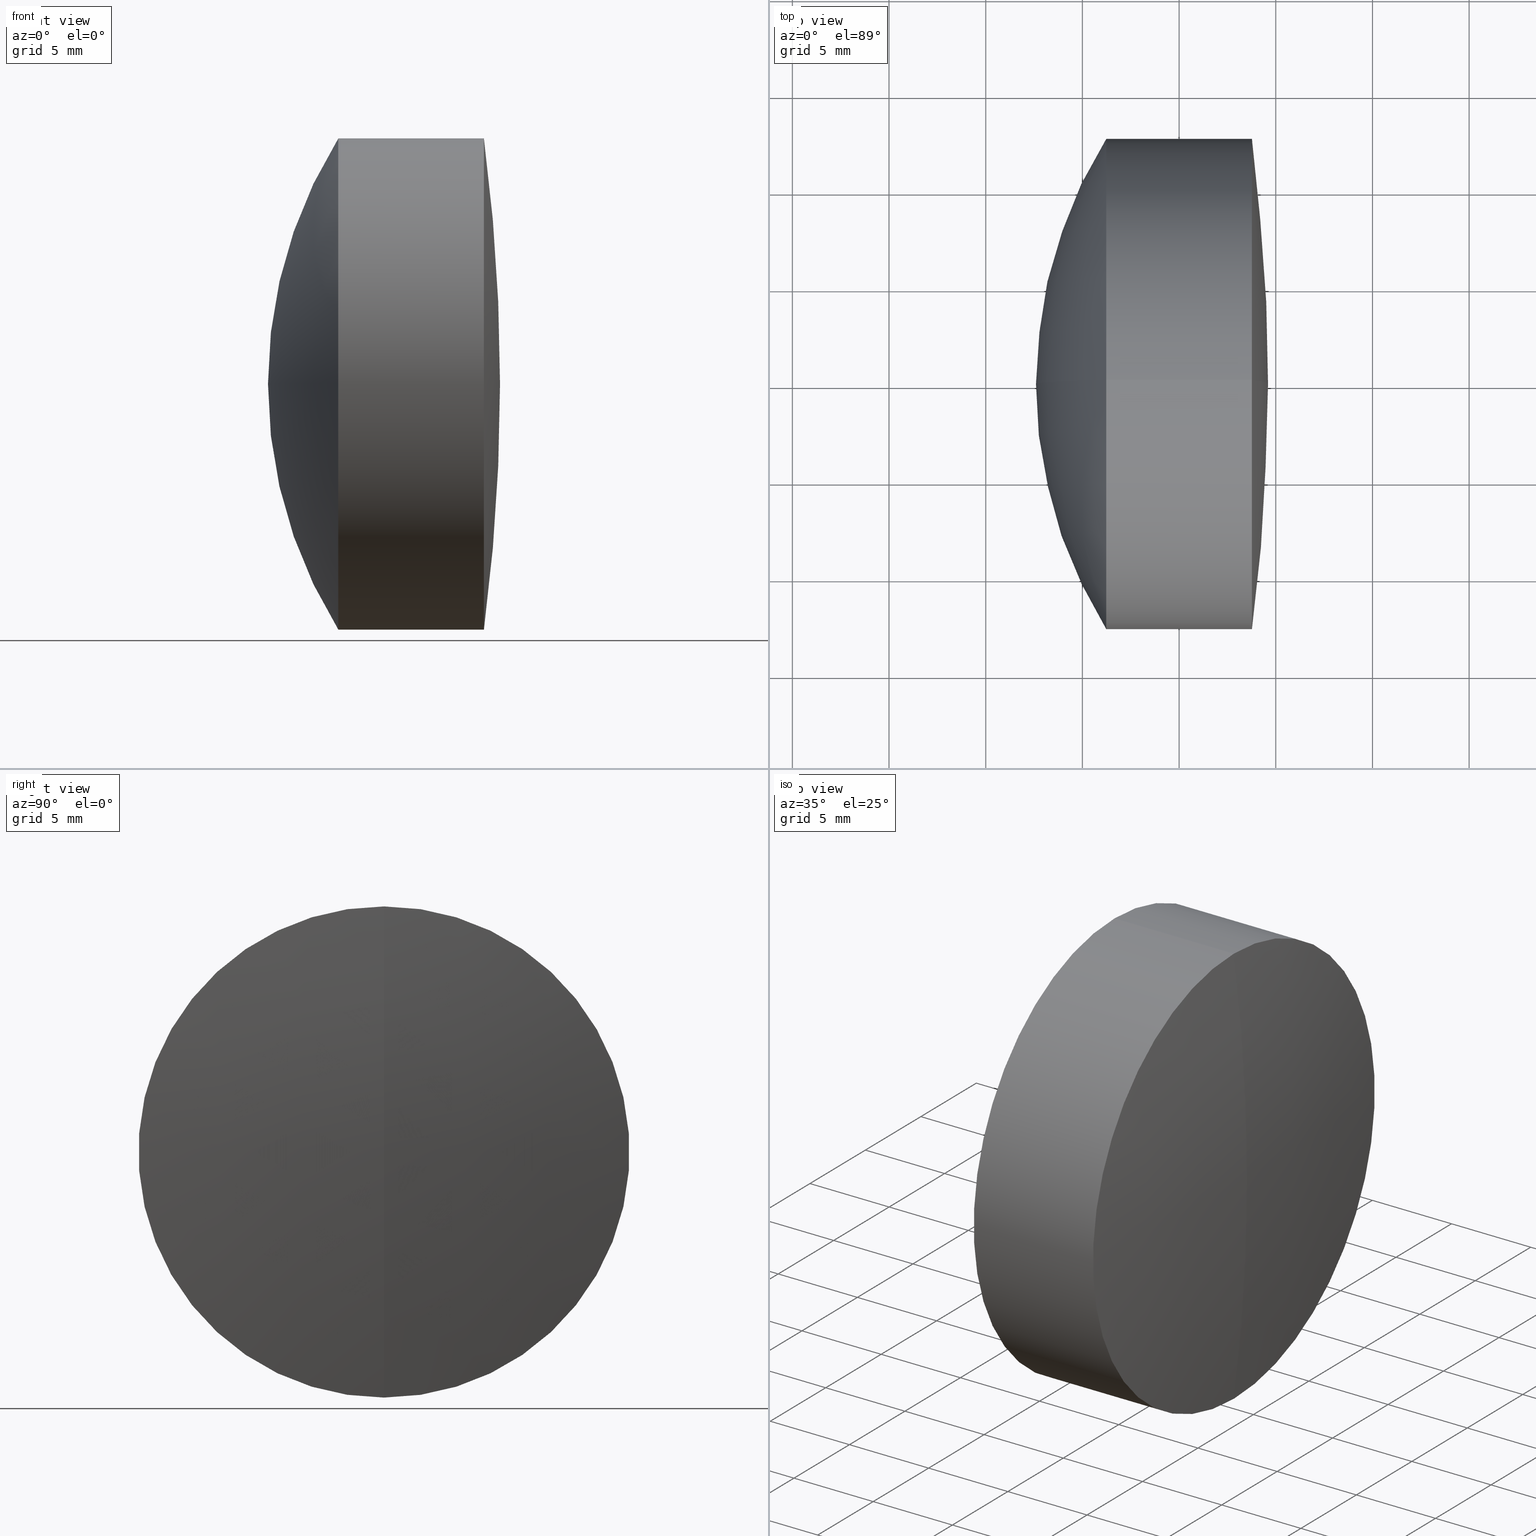
[diagram: canonical four-view strip — front | top / right | iso, engineering-drawing reading convention]
A machine part, canonical four-view strip (front | top / right | iso — engineering-drawing reading convention). The complete STEP part file that produces these views, byte-faithful:
ISO-10303-21;
HEADER;
FILE_DESCRIPTION (( 'STEP AP214' ),
    '1' );
FILE_NAME ('145115.STEP',
    '2019-05-31T02:16:12',
    ( 'user' ),
    ( '΢���й�' ),
    'SwSTEP 2.0',
    'SolidWorks 2016',
    '' );
FILE_SCHEMA (( 'AUTOMOTIVE_DESIGN' ));
ENDSEC;

DATA;
#1 = ADVANCED_FACE ( 'NONE', ( #68 ), #262, .T. ) ;
#2 = DIRECTION ( 'NONE',  ( 0.0000000000000000000, 1.000000000000000000, 0.0000000000000000000 ) ) ;
#3 = EDGE_CURVE ( 'NONE', #190, #42, #59, .T. ) ;
#4 =( LENGTH_UNIT ( ) NAMED_UNIT ( * ) SI_UNIT ( .MILLI., .METRE. ) );
#5 = AXIS2_PLACEMENT_3D ( 'NONE', #60, #261, #259 ) ;
#6 = COLOUR_RGB ( '',1.000000000000000000, 1.000000000000000000, 1.000000000000000000 ) ;
#7 = EDGE_CURVE ( 'NONE', #61, #256, #276, .T. ) ;
#8 =( LENGTH_UNIT ( ) NAMED_UNIT ( * ) SI_UNIT ( .MILLI., .METRE. ) );
#9 = CARTESIAN_POINT ( 'NONE',  ( 278.0956821889693100, 0.0000000000000000000, 12.69999999999997800 ) ) ;
#10 = LINE ( 'NONE', #207, #269 ) ;
#11 = AXIS2_PLACEMENT_3D ( 'NONE', #48, #94, #182 ) ;
#12 = ORIENTED_EDGE ( 'NONE', *, *, #69, .F. ) ;
#13 = DIRECTION ( 'NONE',  ( 0.0000000000000000000, 1.000000000000000000, 0.0000000000000000000 ) ) ;
#14 = DIRECTION ( 'NONE',  ( -1.000000000000000000, -0.0000000000000000000, -0.0000000000000000000 ) ) ;
#15 = SURFACE_SIDE_STYLE ('',( #297 ) ) ;
#16 = FACE_OUTER_BOUND ( 'NONE', #338, .T. ) ;
#17 = DIRECTION ( 'NONE',  ( 0.0000000000000000000, 0.0000000000000000000, -1.000000000000000000 ) ) ;
#18 = DIRECTION ( 'NONE',  ( -1.000000000000000000, -0.0000000000000000000, -0.0000000000000000000 ) ) ;
#19 = ORIENTED_EDGE ( 'NONE', *, *, #178, .F. ) ;
#20 = ORIENTED_EDGE ( 'NONE', *, *, #45, .F. ) ;
#21 = SURFACE_STYLE_USAGE ( .BOTH. , #15 ) ;
#22 = CARTESIAN_POINT ( 'NONE',  ( 272.5989865545651600, 0.0000000000000000000, 5.503456575654534800E-015 ) ) ;
#23 = ORIENTED_EDGE ( 'NONE', *, *, #39, .F. ) ;
#24 = DIRECTION ( 'NONE',  ( -1.000000000000000000, -0.0000000000000000000, -0.0000000000000000000 ) ) ;
#25 = AXIS2_PLACEMENT_3D ( 'NONE', #315, #132, #236 ) ;
#26 = DIRECTION ( 'NONE',  ( 0.0000000000000000000, 1.000000000000000000, 0.0000000000000000000 ) ) ;
#27 = ORIENTED_EDGE ( 'NONE', *, *, #150, .F. ) ;
#28 = SHAPE_DEFINITION_REPRESENTATION ( #53, #133 ) ;
#29 = ADVANCED_FACE ( 'NONE', ( #346 ), #252, .T. ) ;
#30 = DIRECTION ( 'NONE',  ( -0.0000000000000000000, 1.000000000000000000, 1.224646799147353200E-016 ) ) ;
#31 = ORIENTED_EDGE ( 'NONE', *, *, #229, .T. ) ;
#32 = DIRECTION ( 'NONE',  ( 0.0000000000000000000, -1.000000000000000000, 0.0000000000000000000 ) ) ;
#33 = VECTOR ( 'NONE', #181, 1000.000000000000000 ) ;
#34 = PRESENTATION_LAYER_ASSIGNMENT (  '', '', ( #284 ) ) ;
#35 = ORIENTED_EDGE ( 'NONE', *, *, #229, .F. ) ;
#36 =( NAMED_UNIT ( * ) SI_UNIT ( $, .STERADIAN. ) SOLID_ANGLE_UNIT ( ) );
#37 = MANIFOLD_SOLID_BREP ( '��ת3', #187 ) ;
#38 = EDGE_CURVE ( 'NONE', #256, #341, #107, .T. ) ;
#39 = EDGE_CURVE ( 'NONE', #341, #256, #250, .T. ) ;
#40 = DIRECTION ( 'NONE',  ( 0.0000000000000000000, 0.0000000000000000000, 1.000000000000000000 ) ) ;
#41 = LINE ( 'NONE', #91, #118 ) ;
#42 = VERTEX_POINT ( 'NONE', #95 ) ;
#43 = DIRECTION ( 'NONE',  ( -1.000000000000000000, -0.0000000000000000000, -0.0000000000000000000 ) ) ;
#44 = DIRECTION ( 'NONE',  ( 0.0000000000000000000, 0.0000000000000000000, 1.000000000000000000 ) ) ;
#45 = EDGE_CURVE ( 'NONE', #235, #74, #172, .T. ) ;
#46 = DIRECTION ( 'NONE',  ( 0.0000000000000000000, 0.0000000000000000000, 1.000000000000000000 ) ) ;
#47 = CARTESIAN_POINT ( 'NONE',  ( 296.5889865545651700, 0.0000000000000000000, 6.972420411231785500E-015 ) ) ;
#48 = CARTESIAN_POINT ( 'NONE',  ( 296.5889865545651700, 0.0000000000000000000, 6.972420411231785500E-015 ) ) ;
#49 = DIRECTION ( 'NONE',  ( 0.0000000000000000000, 1.000000000000000000, 0.0000000000000000000 ) ) ;
#50 = ORIENTED_EDGE ( 'NONE', *, *, #131, .T. ) ;
#51 = ADVANCED_FACE ( 'NONE', ( #332 ), #293, .T. ) ;
#52 = DIRECTION ( 'NONE',  ( -1.000000000000000000, -0.0000000000000000000, -0.0000000000000000000 ) ) ;
#53 = PRODUCT_DEFINITION_SHAPE ( 'NONE', 'NONE',  #311 ) ;
#54 = AXIS2_PLACEMENT_3D ( 'NONE', #125, #306, #128 ) ;
#55 = EDGE_LOOP ( 'NONE', ( #304, #142, #272 ) ) ;
#56 = SPHERICAL_SURFACE ( 'NONE', #317, 97.27000000000005300 ) ;
#57 = AXIS2_PLACEMENT_3D ( 'NONE', #316, #303, #40 ) ;
#58 = ORIENTED_EDGE ( 'NONE', *, *, #73, .T. ) ;
#59 = CIRCLE ( 'NONE', #5, 12.70000000000000600 ) ;
#60 = CARTESIAN_POINT ( 'NONE',  ( 278.0956821889693100, 0.0000000000000000000, 0.0000000000000000000 ) ) ;
#61 = VERTEX_POINT ( 'NONE', #162 ) ;
#62 = UNCERTAINTY_MEASURE_WITH_UNIT (LENGTH_MEASURE( 1.000000000000000100E-005 ), #231, 'distance_accuracy_value', 'NONE');
#63 = STYLED_ITEM ( 'NONE', ( #226 ), #133 ) ;
#64 = CARTESIAN_POINT ( 'NONE',  ( -0.5519199926577972300, 0.0000000000000000000, 12.69999999999997100 ) ) ;
#65 = EDGE_CURVE ( 'NONE', #267, #278, #258, .T. ) ;
#66 = CARTESIAN_POINT ( 'NONE',  ( 124.5233095260452400, 0.0000000000000000000, 0.0000000000000000000 ) ) ;
#67 = EDGE_LOOP ( 'NONE', ( #50, #214, #169, #92 ) ) ;
#68 = FACE_OUTER_BOUND ( 'NONE', #333, .T. ) ;
#69 = EDGE_CURVE ( 'NONE', #74, #235, #101, .T. ) ;
#70 = FILL_AREA_STYLE ('',( #208 ) ) ;
#71 = DIRECTION ( 'NONE',  ( 0.0000000000000000000, 0.0000000000000000000, 1.000000000000000000 ) ) ;
#72 = CARTESIAN_POINT ( 'NONE',  ( 276.2363429916271700, 0.0000000000000000000, -12.69999999999999900 ) ) ;
#73 = EDGE_CURVE ( 'NONE', #146, #190, #90, .T. ) ;
#74 = VERTEX_POINT ( 'NONE', #185 ) ;
#75 = PRESENTATION_STYLE_ASSIGNMENT (( #21 ) ) ;
#76 = EDGE_CURVE ( 'NONE', #140, #74, #238, .T. ) ;
#77 =( NAMED_UNIT ( * ) SI_UNIT ( $, .STERADIAN. ) SOLID_ANGLE_UNIT ( ) );
#78 = ORIENTED_EDGE ( 'NONE', *, *, #76, .F. ) ;
#79 = COLOUR_RGB ( '',1.000000000000000000, 1.000000000000000000, 1.000000000000000000 ) ;
#80 = ADVANCED_FACE ( 'NONE', ( #115 ), #219, .F. ) ;
#81 = MANIFOLD_SOLID_BREP ( '��ת1', #305 ) ;
#82 = ORIENTED_EDGE ( 'NONE', *, *, #130, .T. ) ;
#83 = PRESENTATION_LAYER_ASSIGNMENT (  '', '', ( #63 ) ) ;
#84 = APPLICATION_PROTOCOL_DEFINITION ( 'draft international standard', 'automotive_design', 1998, #327 ) ;
#85 = FACE_OUTER_BOUND ( 'NONE', #124, .T. ) ;
#86 = ORIENTED_EDGE ( 'NONE', *, *, #3, .F. ) ;
#87 = COLOUR_RGB ( '',1.000000000000000000, 1.000000000000000000, 1.000000000000000000 ) ;
#88 = DIRECTION ( 'NONE',  ( 1.000000000000000000, 0.0000000000000000000, 0.0000000000000000000 ) ) ;
#89 =( NAMED_UNIT ( * ) PLANE_ANGLE_UNIT ( ) SI_UNIT ( $, .RADIAN. ) );
#90 = CIRCLE ( 'NONE', #314, 18.62000000000000800 ) ;
#91 = CARTESIAN_POINT ( 'NONE',  ( 124.5233095260452400, 0.0000000000000000000, 12.70000000000000600 ) ) ;
#92 = ORIENTED_EDGE ( 'NONE', *, *, #123, .F. ) ;
#93 = CARTESIAN_POINT ( 'NONE',  ( 278.0956821889693100, 0.0000000000000000000, 0.0000000000000000000 ) ) ;
#94 = DIRECTION ( 'NONE',  ( -0.0000000000000000000, -1.000000000000000000, -0.0000000000000000000 ) ) ;
#95 = CARTESIAN_POINT ( 'NONE',  ( 278.0956821889693100, 0.0000000000000000000, 12.70000000000000600 ) ) ;
#96 = DIRECTION ( 'NONE',  ( -1.000000000000000000, -0.0000000000000000000, -0.0000000000000000000 ) ) ;
#97 = EDGE_LOOP ( 'NONE', ( #111, #119, #232, #127 ) ) ;
#98 = DIRECTION ( 'NONE',  ( 0.0000000000000000000, 0.0000000000000000000, 1.000000000000000000 ) ) ;
#99 = CARTESIAN_POINT ( 'NONE',  ( 283.7663387579516400, 1.555301434917134700E-015, -12.69999999999996600 ) ) ;
#100 = AXIS2_PLACEMENT_3D ( 'NONE', #202, #154, #159 ) ;
#101 = CIRCLE ( 'NONE', #120, 12.69999999999996600 ) ;
#102 =( NAMED_UNIT ( * ) SI_UNIT ( $, .STERADIAN. ) SOLID_ANGLE_UNIT ( ) );
#103 = AXIS2_PLACEMENT_3D ( 'NONE', #270, #205, #116 ) ;
#104 =( NAMED_UNIT ( * ) PLANE_ANGLE_UNIT ( ) SI_UNIT ( $, .RADIAN. ) );
#105 = DIRECTION ( 'NONE',  ( -1.000000000000000000, -0.0000000000000000000, -0.0000000000000000000 ) ) ;
#106 =( LENGTH_UNIT ( ) NAMED_UNIT ( * ) SI_UNIT ( .MILLI., .METRE. ) );
#107 = CIRCLE ( 'NONE', #274, 12.69999999999997800 ) ;
#108 = CIRCLE ( 'NONE', #218, 18.62000000000001200 ) ;
#109 = SURFACE_STYLE_USAGE ( .BOTH. , #285 ) ;
#110 = AXIS2_PLACEMENT_3D ( 'NONE', #233, #14, #71 ) ;
#111 = ORIENTED_EDGE ( 'NONE', *, *, #253, .F. ) ;
#112 = LINE ( 'NONE', #138, #321 ) ;
#113 = DIRECTION ( 'NONE',  ( 0.0000000000000000000, 0.0000000000000000000, 1.000000000000000000 ) ) ;
#114 = ADVANCED_FACE ( 'NONE', ( #16 ), #289, .T. ) ;
#115 = FACE_OUTER_BOUND ( 'NONE', #179, .T. ) ;
#116 = DIRECTION ( 'NONE',  ( 0.0000000000000000000, 0.0000000000000000000, 1.000000000000000000 ) ) ;
#117 =( GEOMETRIC_REPRESENTATION_CONTEXT ( 3 ) GLOBAL_UNCERTAINTY_ASSIGNED_CONTEXT ( ( #193 ) ) GLOBAL_UNIT_ASSIGNED_CONTEXT ( ( #8, #89, #36 ) ) REPRESENTATION_CONTEXT ( 'NONE', 'WORKASPACE' ) );
#118 = VECTOR ( 'NONE', #149, 1000.000000000000000 ) ;
#119 = ORIENTED_EDGE ( 'NONE', *, *, #45, .T. ) ;
#120 = AXIS2_PLACEMENT_3D ( 'NONE', #287, #24, #312 ) ;
#121 = CIRCLE ( 'NONE', #167, 97.27000000000005300 ) ;
#122 = APPLICATION_CONTEXT ( 'automotive_design' ) ;
#123 = EDGE_CURVE ( 'NONE', #42, #267, #41, .T. ) ;
#124 = EDGE_LOOP ( 'NONE', ( #35, #58, #271 ) ) ;
#125 = CARTESIAN_POINT ( 'NONE',  ( 296.5889865545651700, 0.0000000000000000000, 6.972420411231785500E-015 ) ) ;
#126 =( NAMED_UNIT ( * ) SI_UNIT ( $, .STERADIAN. ) SOLID_ANGLE_UNIT ( ) );
#127 = ORIENTED_EDGE ( 'NONE', *, *, #38, .F. ) ;
#128 = DIRECTION ( 'NONE',  ( 0.0000000000000000000, 0.0000000000000000000, -1.000000000000000000 ) ) ;
#129 = ORIENTED_EDGE ( 'NONE', *, *, #340, .T. ) ;
#130 = EDGE_CURVE ( 'NONE', #61, #341, #108, .T. ) ;
#131 = EDGE_CURVE ( 'NONE', #42, #190, #201, .T. ) ;
#132 = DIRECTION ( 'NONE',  ( 0.0000000000000000000, 1.000000000000000000, -0.0000000000000000000 ) ) ;
#133 = ADVANCED_BREP_SHAPE_REPRESENTATION ( '145115', ( #81, #37, #173 ), #198 ) ;
#134 = ORIENTED_EDGE ( 'NONE', *, *, #7, .F. ) ;
#135 = SURFACE_STYLE_FILL_AREA ( #70 ) ;
#136 = FACE_OUTER_BOUND ( 'NONE', #67, .T. ) ;
#137 = AXIS2_PLACEMENT_3D ( 'NONE', #66, #209, #44 ) ;
#138 = CARTESIAN_POINT ( 'NONE',  ( -0.5519199926577972300, 1.555301434917135100E-015, -12.69999999999997100 ) ) ;
#139 = ADVANCED_FACE ( 'NONE', ( #318 ), #299, .T. ) ;
#140 = VERTEX_POINT ( 'NONE', #242 ) ;
#141 = DIRECTION ( 'NONE',  ( 0.0000000000000000000, -1.000000000000000000, -1.224646799147353200E-016 ) ) ;
#142 = ORIENTED_EDGE ( 'NONE', *, *, #7, .T. ) ;
#143 = AXIS2_PLACEMENT_3D ( 'NONE', #322, #52, #324 ) ;
#144 = FILL_AREA_STYLE ('',( #268 ) ) ;
#145 = EDGE_CURVE ( 'NONE', #278, #267, #176, .T. ) ;
#146 = VERTEX_POINT ( 'NONE', #281 ) ;
#147 = DIRECTION ( 'NONE',  ( 0.0000000000000000000, -1.000000000000000000, 0.0000000000000000000 ) ) ;
#148 = PRESENTATION_LAYER_ASSIGNMENT (  '', '', ( #165 ) ) ;
#149 = DIRECTION ( 'NONE',  ( -1.000000000000000000, -0.0000000000000000000, -0.0000000000000000000 ) ) ;
#150 = EDGE_CURVE ( 'NONE', #267, #156, #244, .T. ) ;
#151 = ORIENTED_EDGE ( 'NONE', *, *, #145, .F. ) ;
#152 = DIRECTION ( 'NONE',  ( 0.0000000000000000000, 0.0000000000000000000, 1.000000000000000000 ) ) ;
#153 = AXIS2_PLACEMENT_3D ( 'NONE', #336, #96, #152 ) ;
#154 = DIRECTION ( 'NONE',  ( -0.0000000000000000000, 1.000000000000000000, 1.224646799147353200E-016 ) ) ;
#155 = EDGE_LOOP ( 'NONE', ( #19, #199, #320, #151 ) ) ;
#156 = VERTEX_POINT ( 'NONE', #22 ) ;
#157 =( NAMED_UNIT ( * ) PLANE_ANGLE_UNIT ( ) SI_UNIT ( $, .RADIAN. ) );
#158 = PRODUCT_DEFINITION_CONTEXT ( 'detailed design', #122, 'design' ) ;
#159 = DIRECTION ( 'NONE',  ( 0.0000000000000000000, -1.224646799147353200E-016, 1.000000000000000000 ) ) ;
#160 = DIRECTION ( 'NONE',  ( -1.000000000000000000, -0.0000000000000000000, -0.0000000000000000000 ) ) ;
#161 = DIRECTION ( 'NONE',  ( 0.0000000000000000000, -1.224646799147353200E-016, 1.000000000000000000 ) ) ;
#162 = CARTESIAN_POINT ( 'NONE',  ( 283.0989865545651600, 0.0000000000000000000, 8.079040073913415500E-015 ) ) ;
#163 = PRODUCT_RELATED_PRODUCT_CATEGORY ( 'part', '', ( #292 ) ) ;
#164 = CARTESIAN_POINT ( 'NONE',  ( 264.4789865545651500, 0.0000000000000000000, 6.938893903907228400E-015 ) ) ;
#165 = STYLED_ITEM ( 'NONE', ( #75 ), #81 ) ;
#166 =( NAMED_UNIT ( * ) PLANE_ANGLE_UNIT ( ) SI_UNIT ( $, .RADIAN. ) );
#167 = AXIS2_PLACEMENT_3D ( 'NONE', #239, #30, #161 ) ;
#168 = CARTESIAN_POINT ( 'NONE',  ( 264.4789865545651500, 0.0000000000000000000, 6.938893903907228400E-015 ) ) ;
#169 = ORIENTED_EDGE ( 'NONE', *, *, #65, .F. ) ;
#170 = SURFACE_STYLE_FILL_AREA ( #144 ) ;
#171 = CARTESIAN_POINT ( 'NONE',  ( 0.0000000000000000000, 0.0000000000000000000, 0.0000000000000000000 ) ) ;
#172 = CIRCLE ( 'NONE', #213, 12.69999999999996600 ) ;
#173 = AXIS2_PLACEMENT_3D ( 'NONE', #171, #344, #88 ) ;
#174 = DIRECTION ( 'NONE',  ( 0.0000000000000000000, 0.0000000000000000000, 1.000000000000000000 ) ) ;
#175 = ORIENTED_EDGE ( 'NONE', *, *, #192, .F. ) ;
#176 = CIRCLE ( 'NONE', #323, 12.70000000000000600 ) ;
#177 = CARTESIAN_POINT ( 'NONE',  ( 278.0956821889693100, 1.555301434917139200E-015, -12.70000000000000600 ) ) ;
#178 = EDGE_CURVE ( 'NONE', #190, #278, #10, .T. ) ;
#179 = EDGE_LOOP ( 'NONE', ( #134, #82, #310 ) ) ;
#180 = PRESENTATION_STYLE_ASSIGNMENT (( #109 ) ) ;
#181 = DIRECTION ( 'NONE',  ( -1.000000000000000000, -0.0000000000000000000, -0.0000000000000000000 ) ) ;
#182 = DIRECTION ( 'NONE',  ( 0.0000000000000000000, 0.0000000000000000000, -1.000000000000000000 ) ) ;
#183 = CYLINDRICAL_SURFACE ( 'NONE', #143, 12.69999999999997100 ) ;
#184 = CARTESIAN_POINT ( 'NONE',  ( 264.4789865545651500, 0.0000000000000000000, 6.938893903907228400E-015 ) ) ;
#185 = CARTESIAN_POINT ( 'NONE',  ( 283.7663387579516400, 0.0000000000000000000, 12.69999999999996600 ) ) ;
#186 = DIRECTION ( 'NONE',  ( -1.000000000000000000, -0.0000000000000000000, -0.0000000000000000000 ) ) ;
#187 = CLOSED_SHELL ( 'NONE', ( #114, #325, #266, #80, #139, #294 ) ) ;
#188 = FACE_OUTER_BOUND ( 'NONE', #246, .T. ) ;
#189 = ADVANCED_FACE ( 'NONE', ( #85 ), #291, .T. ) ;
#190 = VERTEX_POINT ( 'NONE', #177 ) ;
#191 = APPLICATION_PROTOCOL_DEFINITION ( 'draft international standard', 'automotive_design', 1998, #122 ) ;
#192 = EDGE_CURVE ( 'NONE', #74, #341, #212, .T. ) ;
#193 = UNCERTAINTY_MEASURE_WITH_UNIT (LENGTH_MEASURE( 1.000000000000000100E-005 ), #8, 'distance_accuracy_value', 'NONE');
#194 = CYLINDRICAL_SURFACE ( 'NONE', #153, 12.70000000000000600 ) ;
#195 = DIRECTION ( 'NONE',  ( 0.0000000000000000000, 0.0000000000000000000, -1.000000000000000000 ) ) ;
#196 = SURFACE_STYLE_USAGE ( .BOTH. , #221 ) ;
#197 = MECHANICAL_DESIGN_GEOMETRIC_PRESENTATION_REPRESENTATION (  '', ( #165 ), #328 ) ;
#198 =( GEOMETRIC_REPRESENTATION_CONTEXT ( 3 ) GLOBAL_UNCERTAINTY_ASSIGNED_CONTEXT ( ( #288 ) ) GLOBAL_UNIT_ASSIGNED_CONTEXT ( ( #4, #166, #77 ) ) REPRESENTATION_CONTEXT ( 'NONE', 'WORKASPACE' ) );
#199 = ORIENTED_EDGE ( 'NONE', *, *, #3, .T. ) ;
#200 = CARTESIAN_POINT ( 'NONE',  ( 276.2363429916271700, 0.0000000000000000000, 0.0000000000000000000 ) ) ;
#201 = CIRCLE ( 'NONE', #103, 12.70000000000000600 ) ;
#202 = CARTESIAN_POINT ( 'NONE',  ( 264.4789865545651500, 0.0000000000000000000, 6.938893903907228400E-015 ) ) ;
#203 = AXIS2_PLACEMENT_3D ( 'NONE', #296, #223, #257 ) ;
#204 = CIRCLE ( 'NONE', #206, 18.62000000000000800 ) ;
#205 = DIRECTION ( 'NONE',  ( -1.000000000000000000, -0.0000000000000000000, -0.0000000000000000000 ) ) ;
#206 = AXIS2_PLACEMENT_3D ( 'NONE', #168, #32, #195 ) ;
#207 = CARTESIAN_POINT ( 'NONE',  ( 124.5233095260452400, 1.555301434917139200E-015, -12.70000000000000600 ) ) ;
#208 = FILL_AREA_STYLE_COLOUR ( '', #79 ) ;
#209 = DIRECTION ( 'NONE',  ( -1.000000000000000000, -0.0000000000000000000, -0.0000000000000000000 ) ) ;
#210 = AXIS2_PLACEMENT_3D ( 'NONE', #313, #13, #98 ) ;
#211 = EDGE_LOOP ( 'NONE', ( #27, #228, #224 ) ) ;
#212 = LINE ( 'NONE', #64, #33 ) ;
#213 = AXIS2_PLACEMENT_3D ( 'NONE', #254, #331, #174 ) ;
#214 = ORIENTED_EDGE ( 'NONE', *, *, #178, .T. ) ;
#215 = ADVANCED_FACE ( 'NONE', ( #136 ), #194, .T. ) ;
#216 = AXIS2_PLACEMENT_3D ( 'NONE', #286, #18, #225 ) ;
#217 = ORIENTED_EDGE ( 'NONE', *, *, #243, .F. ) ;
#218 = AXIS2_PLACEMENT_3D ( 'NONE', #184, #147, #17 ) ;
#219 = SPHERICAL_SURFACE ( 'NONE', #57, 18.62000000000001200 ) ;
#220 = ORIENTED_EDGE ( 'NONE', *, *, #253, .T. ) ;
#221 = SURFACE_SIDE_STYLE ('',( #170 ) ) ;
#222 = EDGE_LOOP ( 'NONE', ( #302, #220, #23, #175 ) ) ;
#223 = DIRECTION ( 'NONE',  ( 0.0000000000000000000, 1.000000000000000000, 0.0000000000000000000 ) ) ;
#224 = ORIENTED_EDGE ( 'NONE', *, *, #243, .T. ) ;
#225 = DIRECTION ( 'NONE',  ( 0.0000000000000000000, 0.0000000000000000000, 1.000000000000000000 ) ) ;
#226 = PRESENTATION_STYLE_ASSIGNMENT (( #196 ) ) ;
#227 = CIRCLE ( 'NONE', #25, 23.99000000000001600 ) ;
#228 = ORIENTED_EDGE ( 'NONE', *, *, #65, .T. ) ;
#229 = EDGE_CURVE ( 'NONE', #146, #42, #204, .T. ) ;
#230 = DIRECTION ( 'NONE',  ( 0.0000000000000000000, 0.0000000000000000000, 1.000000000000000000 ) ) ;
#231 =( LENGTH_UNIT ( ) NAMED_UNIT ( * ) SI_UNIT ( .MILLI., .METRE. ) );
#232 = ORIENTED_EDGE ( 'NONE', *, *, #192, .T. ) ;
#233 = CARTESIAN_POINT ( 'NONE',  ( -0.5519199926577972300, 0.0000000000000000000, 0.0000000000000000000 ) ) ;
#234 = ORIENTED_EDGE ( 'NONE', *, *, #150, .T. ) ;
#235 = VERTEX_POINT ( 'NONE', #99 ) ;
#236 = DIRECTION ( 'NONE',  ( 0.0000000000000000000, 0.0000000000000000000, 1.000000000000000000 ) ) ;
#237 = ADVANCED_FACE ( 'NONE', ( #334 ), #273, .T. ) ;
#238 = CIRCLE ( 'NONE', #245, 97.27000000000005300 ) ;
#239 = CARTESIAN_POINT ( 'NONE',  ( 187.3289865545651800, 0.0000000000000000000, 0.0000000000000000000 ) ) ;
#240 = CARTESIAN_POINT ( 'NONE',  ( 187.3289865545651800, 0.0000000000000000000, 0.0000000000000000000 ) ) ;
#241 = MECHANICAL_DESIGN_GEOMETRIC_PRESENTATION_REPRESENTATION (  '', ( #63 ), #117 ) ;
#242 = CARTESIAN_POINT ( 'NONE',  ( 284.5989865545652200, 0.0000000000000000000, 5.956069707653155200E-015 ) ) ;
#243 = EDGE_CURVE ( 'NONE', #278, #156, #227, .T. ) ;
#244 = CIRCLE ( 'NONE', #265, 23.99000000000001600 ) ;
#245 = AXIS2_PLACEMENT_3D ( 'NONE', #347, #343, #339 ) ;
#246 = EDGE_LOOP ( 'NONE', ( #329, #283, #20 ) ) ;
#247 = CARTESIAN_POINT ( 'NONE',  ( 278.0956821889693100, 1.555301434917136300E-015, -12.69999999999997100 ) ) ;
#248 = FACE_OUTER_BOUND ( 'NONE', #222, .T. ) ;
#249 = PRODUCT_DEFINITION_FORMATION_WITH_SPECIFIED_SOURCE ( '�κ�', '', #292, .NOT_KNOWN. ) ;
#250 = CIRCLE ( 'NONE', #216, 12.69999999999997800 ) ;
#251 = PRODUCT_CONTEXT ( 'NONE', #327, 'mechanical' ) ;
#252 = SPHERICAL_SURFACE ( 'NONE', #54, 23.99000000000001600 ) ;
#253 = EDGE_CURVE ( 'NONE', #235, #256, #112, .T. ) ;
#254 = CARTESIAN_POINT ( 'NONE',  ( 283.7663387579516400, 0.0000000000000000000, 0.0000000000000000000 ) ) ;
#255 = UNCERTAINTY_MEASURE_WITH_UNIT (LENGTH_MEASURE( 1.000000000000000100E-005 ), #106, 'distance_accuracy_value', 'NONE');
#256 = VERTEX_POINT ( 'NONE', #247 ) ;
#257 = DIRECTION ( 'NONE',  ( 0.0000000000000000000, 0.0000000000000000000, 1.000000000000000000 ) ) ;
#258 = CIRCLE ( 'NONE', #263, 12.70000000000000600 ) ;
#259 = DIRECTION ( 'NONE',  ( 0.0000000000000000000, 0.0000000000000000000, 1.000000000000000000 ) ) ;
#260 = DIRECTION ( 'NONE',  ( 0.0000000000000000000, 0.0000000000000000000, 1.000000000000000000 ) ) ;
#261 = DIRECTION ( 'NONE',  ( -1.000000000000000000, -0.0000000000000000000, -0.0000000000000000000 ) ) ;
#262 = SPHERICAL_SURFACE ( 'NONE', #335, 18.62000000000000800 ) ;
#263 = AXIS2_PLACEMENT_3D ( 'NONE', #200, #280, #282 ) ;
#264 = MECHANICAL_DESIGN_GEOMETRIC_PRESENTATION_REPRESENTATION (  '', ( #284 ), #298 ) ;
#265 = AXIS2_PLACEMENT_3D ( 'NONE', #47, #141, #326 ) ;
#266 = ADVANCED_FACE ( 'NONE', ( #309 ), #301, .F. ) ;
#267 = VERTEX_POINT ( 'NONE', #275 ) ;
#268 = FILL_AREA_STYLE_COLOUR ( '', #87 ) ;
#269 = VECTOR ( 'NONE', #43, 1000.000000000000000 ) ;
#270 = CARTESIAN_POINT ( 'NONE',  ( 278.0956821889693100, 0.0000000000000000000, 0.0000000000000000000 ) ) ;
#271 = ORIENTED_EDGE ( 'NONE', *, *, #131, .F. ) ;
#272 = ORIENTED_EDGE ( 'NONE', *, *, #38, .T. ) ;
#273 = CYLINDRICAL_SURFACE ( 'NONE', #137, 12.70000000000000600 ) ;
#274 = AXIS2_PLACEMENT_3D ( 'NONE', #93, #186, #46 ) ;
#275 = CARTESIAN_POINT ( 'NONE',  ( 276.2363429916271700, -1.555301434917138400E-015, 12.70000000000000600 ) ) ;
#276 = CIRCLE ( 'NONE', #100, 18.62000000000001200 ) ;
#277 = CARTESIAN_POINT ( 'NONE',  ( 264.4789865545651500, 0.0000000000000000000, 6.938893903907228400E-015 ) ) ;
#278 = VERTEX_POINT ( 'NONE', #72 ) ;
#279 = AXIS2_PLACEMENT_3D ( 'NONE', #164, #2, #295 ) ;
#280 = DIRECTION ( 'NONE',  ( -1.000000000000000000, -0.0000000000000000000, -0.0000000000000000000 ) ) ;
#281 = CARTESIAN_POINT ( 'NONE',  ( 283.0989865545651600, 0.0000000000000000000, 8.079040073913415500E-015 ) ) ;
#282 = DIRECTION ( 'NONE',  ( 0.0000000000000000000, 0.0000000000000000000, 1.000000000000000000 ) ) ;
#283 = ORIENTED_EDGE ( 'NONE', *, *, #76, .T. ) ;
#284 = STYLED_ITEM ( 'NONE', ( #180 ), #37 ) ;
#285 = SURFACE_SIDE_STYLE ('',( #135 ) ) ;
#286 = CARTESIAN_POINT ( 'NONE',  ( 278.0956821889693100, 0.0000000000000000000, 0.0000000000000000000 ) ) ;
#287 = CARTESIAN_POINT ( 'NONE',  ( 283.7663387579516400, 0.0000000000000000000, 0.0000000000000000000 ) ) ;
#288 = UNCERTAINTY_MEASURE_WITH_UNIT (LENGTH_MEASURE( 1.000000000000000100E-005 ), #4, 'distance_accuracy_value', 'NONE');
#289 = SPHERICAL_SURFACE ( 'NONE', #210, 97.27000000000005300 ) ;
#290 = ORIENTED_EDGE ( 'NONE', *, *, #73, .F. ) ;
#291 = SPHERICAL_SURFACE ( 'NONE', #203, 18.62000000000000800 ) ;
#292 = PRODUCT ( '145115', '145115', '', ( #251 ) ) ;
#293 = SPHERICAL_SURFACE ( 'NONE', #11, 23.99000000000001600 ) ;
#294 = ADVANCED_FACE ( 'NONE', ( #188 ), #56, .T. ) ;
#295 = DIRECTION ( 'NONE',  ( 0.0000000000000000000, 0.0000000000000000000, 1.000000000000000000 ) ) ;
#296 = CARTESIAN_POINT ( 'NONE',  ( 264.4789865545651500, 0.0000000000000000000, 6.938893903907228400E-015 ) ) ;
#297 = SURFACE_STYLE_FILL_AREA ( #345 ) ;
#298 =( GEOMETRIC_REPRESENTATION_CONTEXT ( 3 ) GLOBAL_UNCERTAINTY_ASSIGNED_CONTEXT ( ( #255 ) ) GLOBAL_UNIT_ASSIGNED_CONTEXT ( ( #106, #104, #102 ) ) REPRESENTATION_CONTEXT ( 'NONE', 'WORKASPACE' ) );
#299 = CYLINDRICAL_SURFACE ( 'NONE', #110, 12.69999999999997100 ) ;
#300 = EDGE_LOOP ( 'NONE', ( #330, #234, #217 ) ) ;
#301 = SPHERICAL_SURFACE ( 'NONE', #279, 18.62000000000001200 ) ;
#302 = ORIENTED_EDGE ( 'NONE', *, *, #69, .T. ) ;
#303 = DIRECTION ( 'NONE',  ( 0.0000000000000000000, 1.000000000000000000, 0.0000000000000000000 ) ) ;
#304 = ORIENTED_EDGE ( 'NONE', *, *, #130, .F. ) ;
#305 = CLOSED_SHELL ( 'NONE', ( #189, #215, #51, #29, #237, #1 ) ) ;
#306 = DIRECTION ( 'NONE',  ( -0.0000000000000000000, -1.000000000000000000, -0.0000000000000000000 ) ) ;
#307 = CARTESIAN_POINT ( 'NONE',  ( 264.4789865545651500, 0.0000000000000000000, 6.938893903907228400E-015 ) ) ;
#308 = FILL_AREA_STYLE_COLOUR ( '', #6 ) ;
#309 = FACE_OUTER_BOUND ( 'NONE', #55, .T. ) ;
#310 = ORIENTED_EDGE ( 'NONE', *, *, #39, .T. ) ;
#311 = PRODUCT_DEFINITION ( 'δ֪', '', #249, #158 ) ;
#312 = DIRECTION ( 'NONE',  ( 0.0000000000000000000, 0.0000000000000000000, 1.000000000000000000 ) ) ;
#313 = CARTESIAN_POINT ( 'NONE',  ( 187.3289865545651800, 0.0000000000000000000, 0.0000000000000000000 ) ) ;
#314 = AXIS2_PLACEMENT_3D ( 'NONE', #307, #337, #319 ) ;
#315 = CARTESIAN_POINT ( 'NONE',  ( 296.5889865545651700, 0.0000000000000000000, 6.972420411231785500E-015 ) ) ;
#316 = CARTESIAN_POINT ( 'NONE',  ( 264.4789865545651500, 0.0000000000000000000, 6.938893903907228400E-015 ) ) ;
#317 = AXIS2_PLACEMENT_3D ( 'NONE', #240, #26, #113 ) ;
#318 = FACE_OUTER_BOUND ( 'NONE', #97, .T. ) ;
#319 = DIRECTION ( 'NONE',  ( 0.0000000000000000000, -1.224646799147353200E-016, 1.000000000000000000 ) ) ;
#320 = ORIENTED_EDGE ( 'NONE', *, *, #123, .T. ) ;
#321 = VECTOR ( 'NONE', #105, 1000.000000000000000 ) ;
#322 = CARTESIAN_POINT ( 'NONE',  ( -0.5519199926577972300, 0.0000000000000000000, 0.0000000000000000000 ) ) ;
#323 = AXIS2_PLACEMENT_3D ( 'NONE', #342, #160, #230 ) ;
#324 = DIRECTION ( 'NONE',  ( 0.0000000000000000000, 0.0000000000000000000, 1.000000000000000000 ) ) ;
#325 = ADVANCED_FACE ( 'NONE', ( #248 ), #183, .T. ) ;
#326 = DIRECTION ( 'NONE',  ( 0.0000000000000000000, 1.224646799147353200E-016, -1.000000000000000000 ) ) ;
#327 = APPLICATION_CONTEXT ( 'automotive_design' ) ;
#328 =( GEOMETRIC_REPRESENTATION_CONTEXT ( 3 ) GLOBAL_UNCERTAINTY_ASSIGNED_CONTEXT ( ( #62 ) ) GLOBAL_UNIT_ASSIGNED_CONTEXT ( ( #231, #157, #126 ) ) REPRESENTATION_CONTEXT ( 'NONE', 'WORKASPACE' ) );
#329 = ORIENTED_EDGE ( 'NONE', *, *, #340, .F. ) ;
#330 = ORIENTED_EDGE ( 'NONE', *, *, #145, .T. ) ;
#331 = DIRECTION ( 'NONE',  ( -1.000000000000000000, -0.0000000000000000000, -0.0000000000000000000 ) ) ;
#332 = FACE_OUTER_BOUND ( 'NONE', #300, .T. ) ;
#333 = EDGE_LOOP ( 'NONE', ( #290, #31, #86 ) ) ;
#334 = FACE_OUTER_BOUND ( 'NONE', #155, .T. ) ;
#335 = AXIS2_PLACEMENT_3D ( 'NONE', #277, #49, #260 ) ;
#336 = CARTESIAN_POINT ( 'NONE',  ( 124.5233095260452400, 0.0000000000000000000, 0.0000000000000000000 ) ) ;
#337 = DIRECTION ( 'NONE',  ( -0.0000000000000000000, 1.000000000000000000, 1.224646799147353200E-016 ) ) ;
#338 = EDGE_LOOP ( 'NONE', ( #78, #129, #12 ) ) ;
#339 = DIRECTION ( 'NONE',  ( 0.0000000000000000000, 0.0000000000000000000, -1.000000000000000000 ) ) ;
#340 = EDGE_CURVE ( 'NONE', #140, #235, #121, .T. ) ;
#341 = VERTEX_POINT ( 'NONE', #9 ) ;
#342 = CARTESIAN_POINT ( 'NONE',  ( 276.2363429916271700, 0.0000000000000000000, 0.0000000000000000000 ) ) ;
#343 = DIRECTION ( 'NONE',  ( 0.0000000000000000000, -1.000000000000000000, 0.0000000000000000000 ) ) ;
#344 = DIRECTION ( 'NONE',  ( 0.0000000000000000000, 0.0000000000000000000, 1.000000000000000000 ) ) ;
#345 = FILL_AREA_STYLE ('',( #308 ) ) ;
#346 = FACE_OUTER_BOUND ( 'NONE', #211, .T. ) ;
#347 = CARTESIAN_POINT ( 'NONE',  ( 187.3289865545651800, 0.0000000000000000000, 0.0000000000000000000 ) ) ;
ENDSEC;
END-ISO-10303-21;
